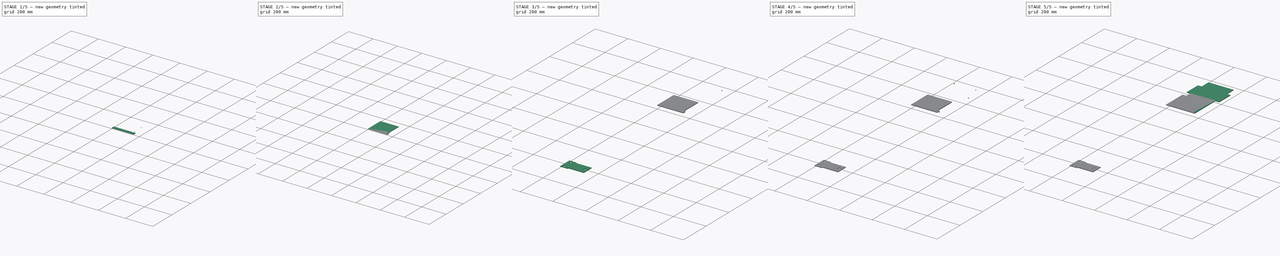
[diagram: build sequence overview — one tinted view per stage of 5, left to right]
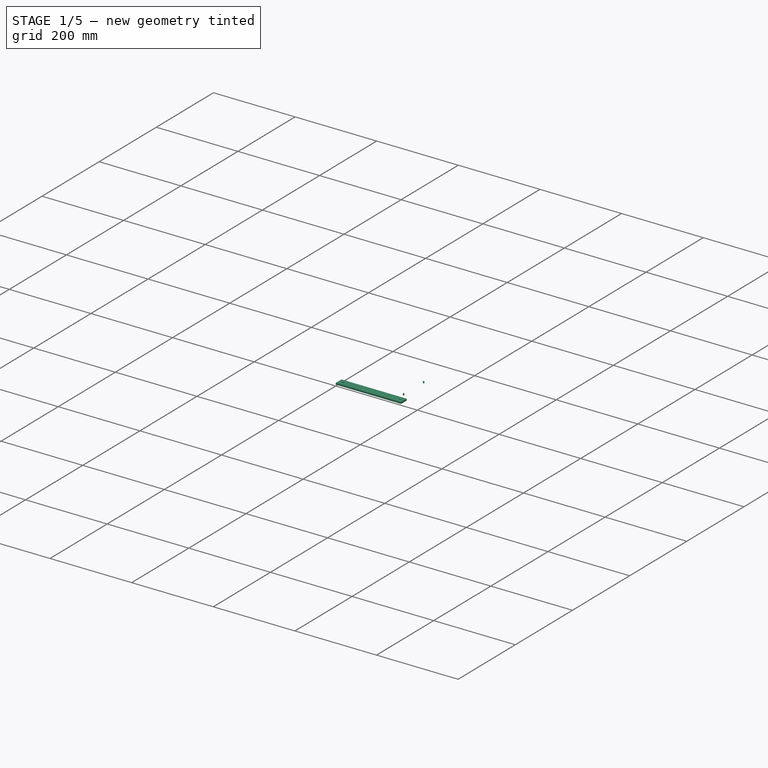
[diagram: stage 1 of 5 — iso view after this stage's code; geometry added in this stage tinted green]
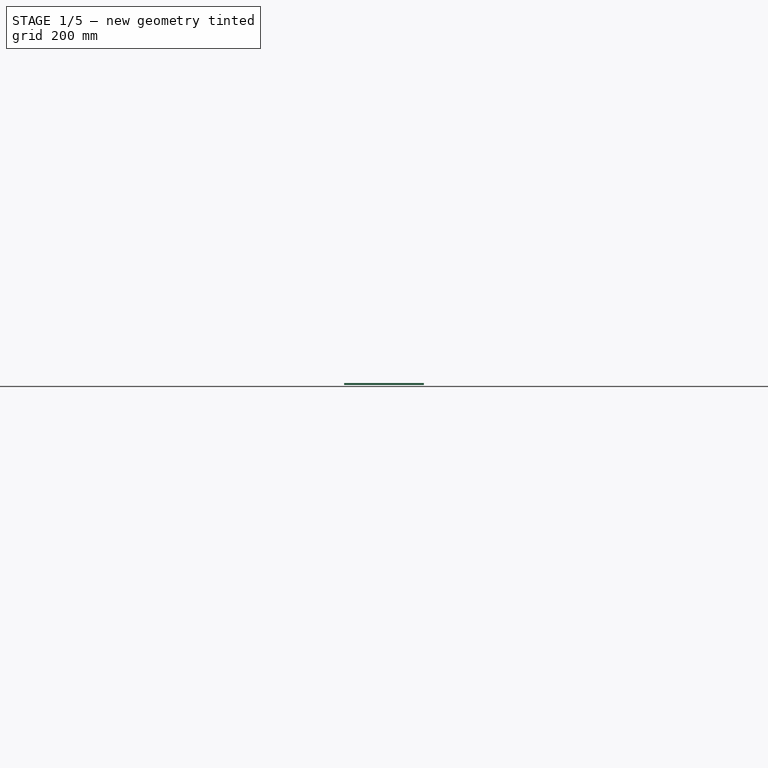
[diagram: stage 1 of 5 — front view after this stage's code; geometry added in this stage tinted green]
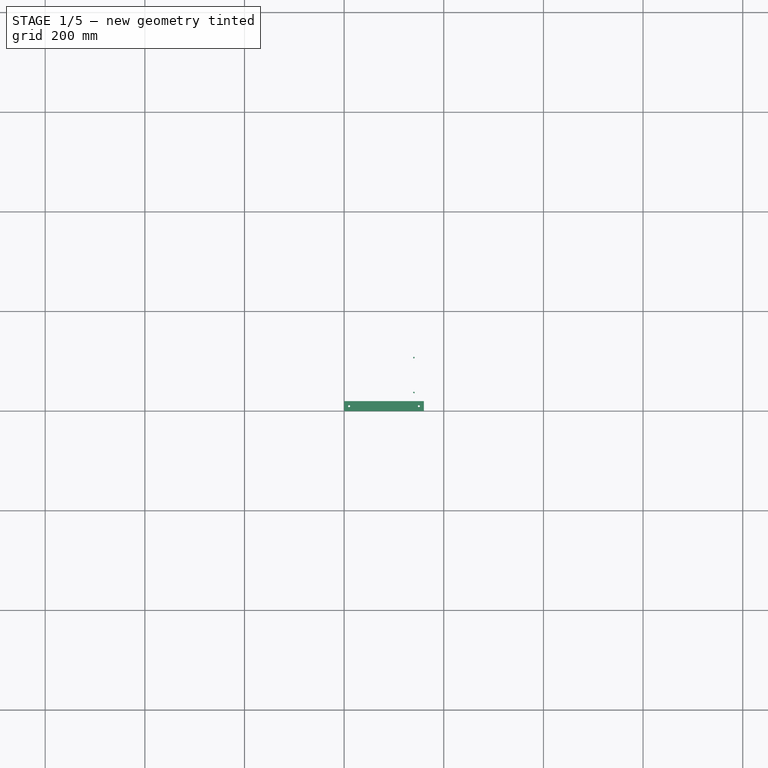
[diagram: stage 1 of 5 — top view after this stage's code; geometry added in this stage tinted green]
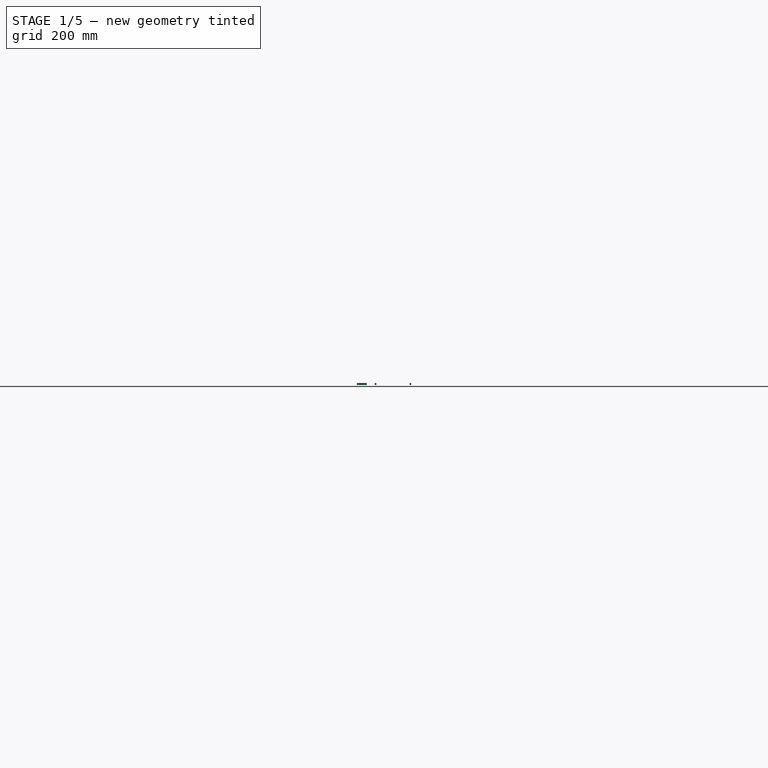
[diagram: stage 1 of 5 — right view after this stage's code; geometry added in this stage tinted green]
FCSTD DOCUMENT  (FreeCAD 0.14R3692 (Git))
Label: lasercuts
License: CC-BY 3.0
LicenseURL: http://creativecommons.org/licenses/by/3.0/
objects: Part::Feature×32, App::DocumentObjectGroup×26, Part::Extrusion×13, Part::Compound×3, Part::Cut×3, Sketcher::SketchObject×2, Part::Chamfer×1, PartDesign::Pad×1, PartDesign::Pocket×1
note: 58 computed .brp shape members not serialized (recipe doc carries the construction recipe); baked Part::Feature solids carry a one-line shape summary decoded from their .brp

FEATURE [Part::Extrusion] Extrude011
  Base = -> Circle007
  Dir = (0,0,4)
  Solid = true
FEATURE [Part::Extrusion] Extrude012
  Base = -> Circle008
  Dir = (0,0,4)
  Solid = true
FEATURE [Part::Feature] Chamfer001  label="bed-plate"
  shape: bbox 150 x 145 x 4 mm, 12 faces (baked)
FEATURE [Sketcher::SketchObject] Sketch  label="reprap-plate-sketch"
  sketch-geometry (4):
    g0: LineSegment StartX=0 StartY=0 StartZ=0 EndX=160 EndY=0 EndZ=0
    g1: LineSegment StartX=160 StartY=0 StartZ=0 EndX=160 EndY=20 EndZ=0
    g2: LineSegment StartX=160 StartY=20 StartZ=0 EndX=0 EndY=20 EndZ=0
    g3: LineSegment StartX=0 StartY=20 StartZ=0 EndX=0 EndY=0 EndZ=0
  constraints (11):
    c: Coincident(g0,g1)
    c: Coincident(g1,g2)
    c: Coincident(g2,g3)
    c: Coincident(g3,g0)
    c: Horizontal(g0)
    c: Horizontal(g2)
    c: Vertical(g1)
    c: Vertical(g3)
    c: Coincident(g0,g-1)
    c: DistanceY(g3) = -20
    c: DistanceX(g0) = 160
FEATURE [PartDesign::Pad] Pad  label="reprap-plate-pad"
  Length = 4
  Length2 = 100
  Sketch = -> Sketch
  Type = 0
FEATURE [Sketcher::SketchObject] Sketch001  label="reprap-plate-holes-sketch"
  Placement = pos=(0,0,4) rot=(0,0,1;0rad)
  Support = -> Pad [Face6]
  sketch-geometry (2):
    g0: Circle CenterX=10 CenterY=10 CenterZ=0 NormalX=0 NormalY=0 NormalZ=1 Radius=2
    g1: Circle CenterX=150 CenterY=10 CenterZ=0 NormalX=0 NormalY=0 NormalZ=1 Radius=2
  constraints (6):
    c: DistanceY(g-1,g0) = 10
    c: DistanceY(g-1,g1) = 10
    c: DistanceX(g-1,g0) = 10
    c: DistanceX(g0,g1) = 140
    c: Equal(g0,g1)
    c: Radius(g0) = 2
FEATURE [PartDesign::Pocket] Pocket  label="reprap-plate-holes-pocket"
  Length = 5
  Sketch = -> Sketch001
  Type = 0
FEATURE [Part::Feature] Pocket001  label="reprap-plate"
  shape: bbox 160 x 20 x 4 mm, 8 faces (baked)
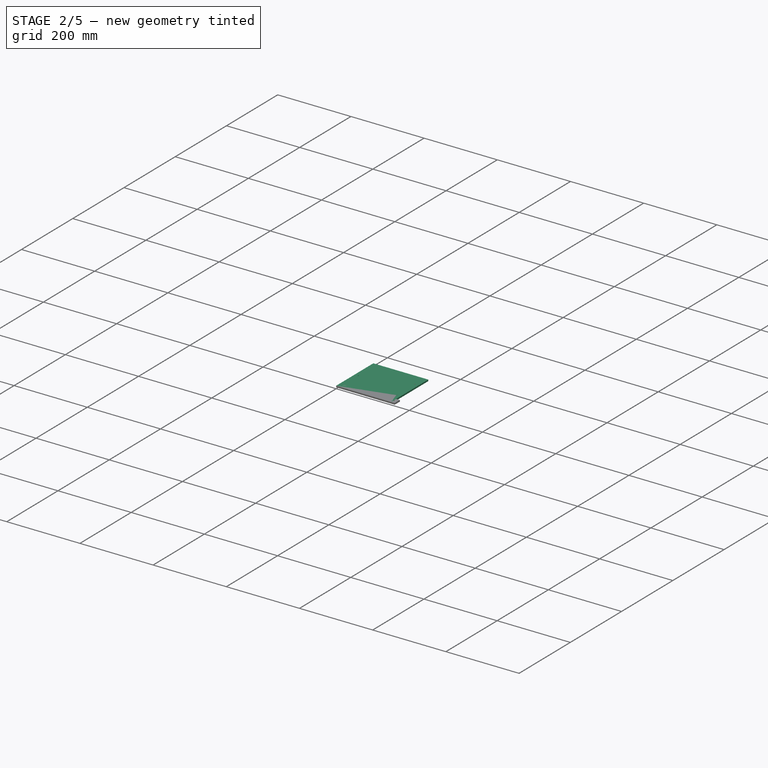
[diagram: stage 2 of 5 — iso view after this stage's code; geometry added in this stage tinted green]
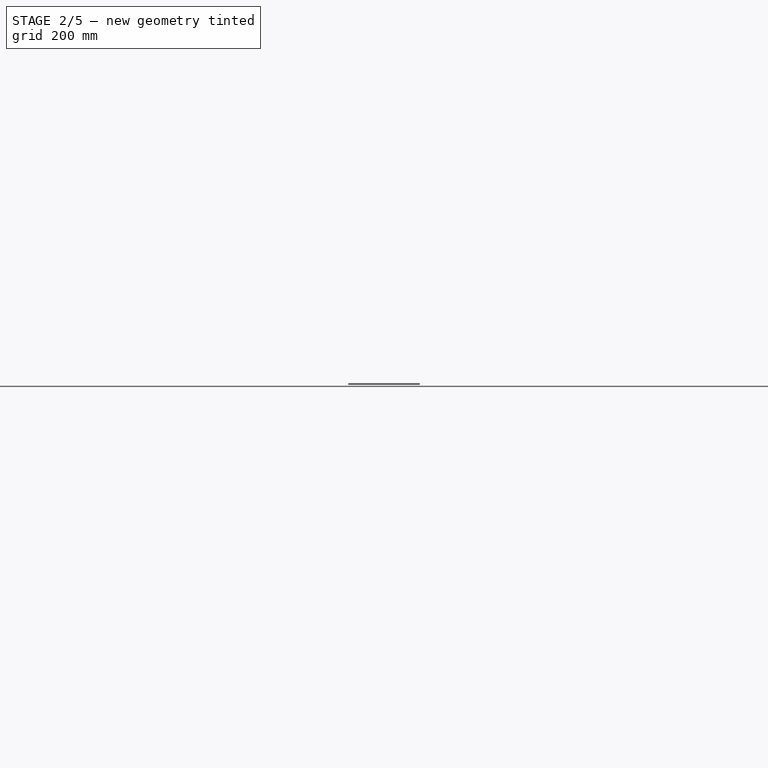
[diagram: stage 2 of 5 — front view after this stage's code; geometry added in this stage tinted green]
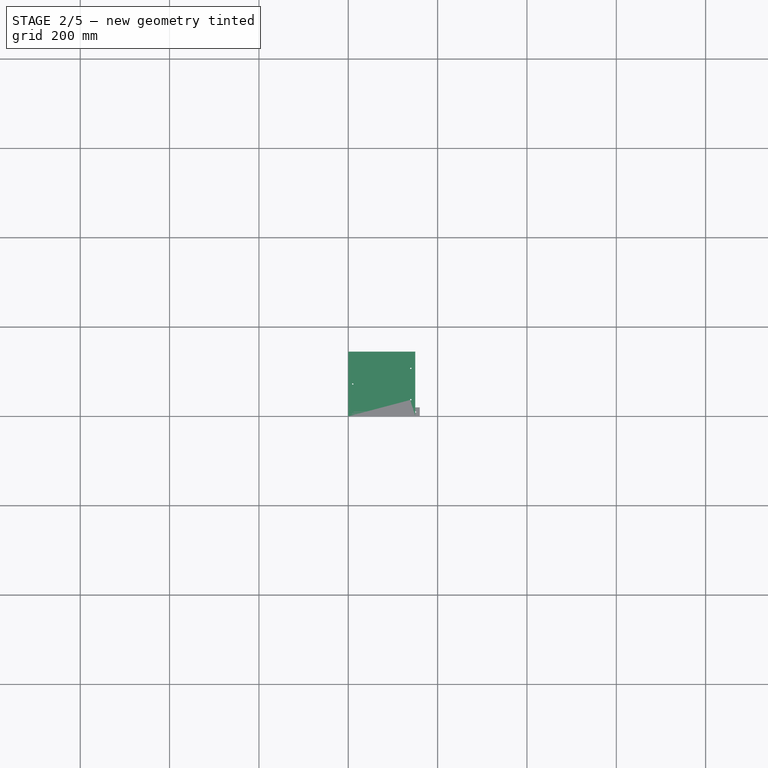
[diagram: stage 2 of 5 — top view after this stage's code; geometry added in this stage tinted green]
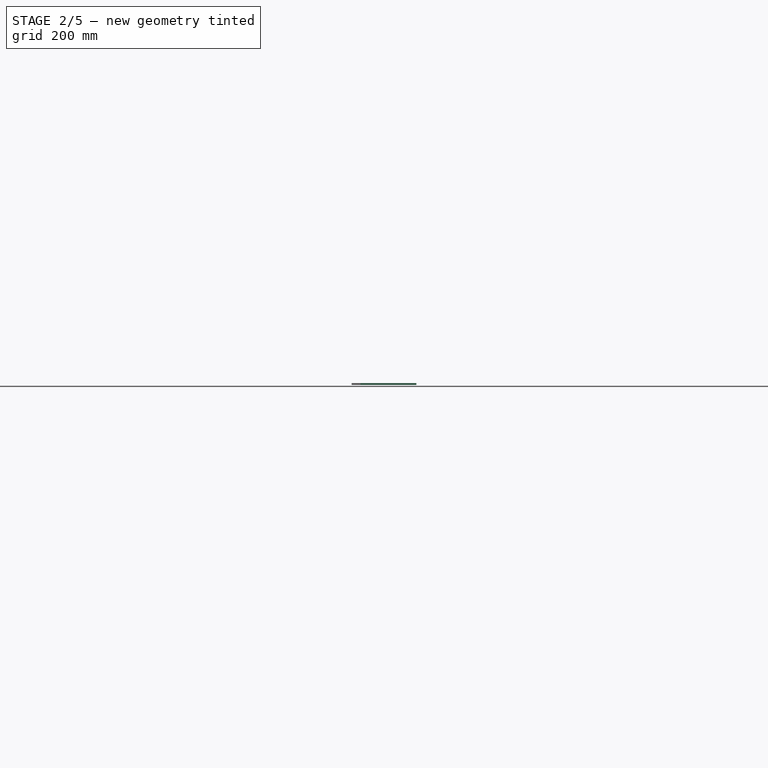
[diagram: stage 2 of 5 — right view after this stage's code; geometry added in this stage tinted green]
FEATURE [Part::Feature] Cut002001  label="y-carriage"
  Placement = pos=(12.698,873,0) rot=(0,0,1;0rad)
  shape: bbox 140 x 80 x 4 mm, 174 faces (baked)
FEATURE [Part::Feature] Polyline018
  shape: bbox 150 x 145 x 2e-07 mm, 1 faces, 0 solids (baked)
FEATURE [App::DocumentObjectGroup] COMPONENT0018  label="COMPONENT019"
  Group = -> [Polyline018]
FEATURE [Part::Feature] Circle006
  shape: bbox 3 x 3 x 2e-07 mm, 0 faces, 0 solids (baked)
FEATURE [App::DocumentObjectGroup] COMPONENT1001  label="COMPONENT020"
  Group = -> [Circle006]
FEATURE [Part::Feature] Circle007
  shape: bbox 3 x 3 x 2e-07 mm, 0 faces, 0 solids (baked)
FEATURE [App::DocumentObjectGroup] COMPONENT1002  label="COMPONENT021"
  Group = -> [Circle007]
FEATURE [Part::Feature] Circle008
  shape: bbox 3 x 3 x 2e-07 mm, 0 faces, 0 solids (baked)
FEATURE [App::DocumentObjectGroup] COMPONENT1003  label="COMPONENT022"
  Group = -> [Circle008]
FEATURE [App::DocumentObjectGroup] bed_plate  label="bed-plate-dxf"
  Group = -> [COMPONENT0018,COMPONENT1001,COMPONENT1002,COMPONENT1003]
FEATURE [Part::Extrusion] Extrude009
  Base = -> Polyline018
  Dir = (0,0,4)
  Solid = true
FEATURE [Part::Extrusion] Extrude010
  Base = -> Circle006
  Dir = (0,0,4)
  Solid = true
FEATURE [Part::Compound] Compound002
  Links = -> [Extrude010,Extrude011,Extrude012]
FEATURE [Part::Cut] Cut002002
  Base = -> Extrude009
  Tool = -> Compound002
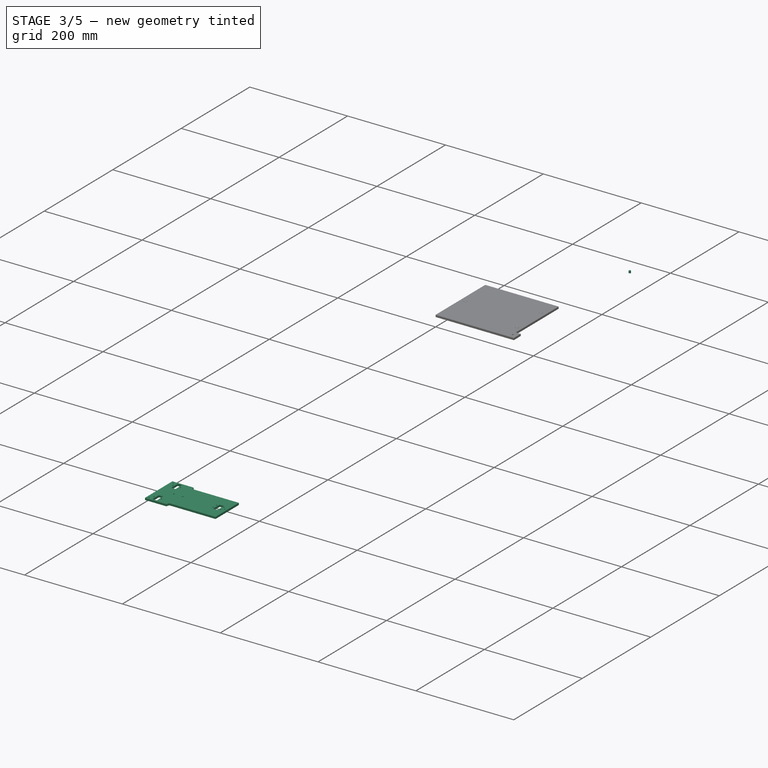
[diagram: stage 3 of 5 — iso view after this stage's code; geometry added in this stage tinted green]
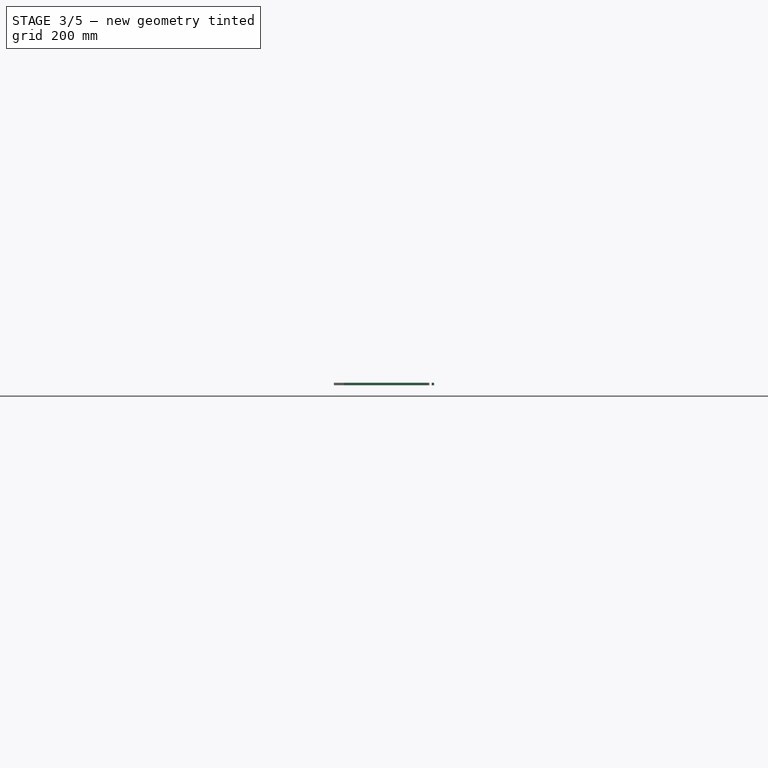
[diagram: stage 3 of 5 — front view after this stage's code; geometry added in this stage tinted green]
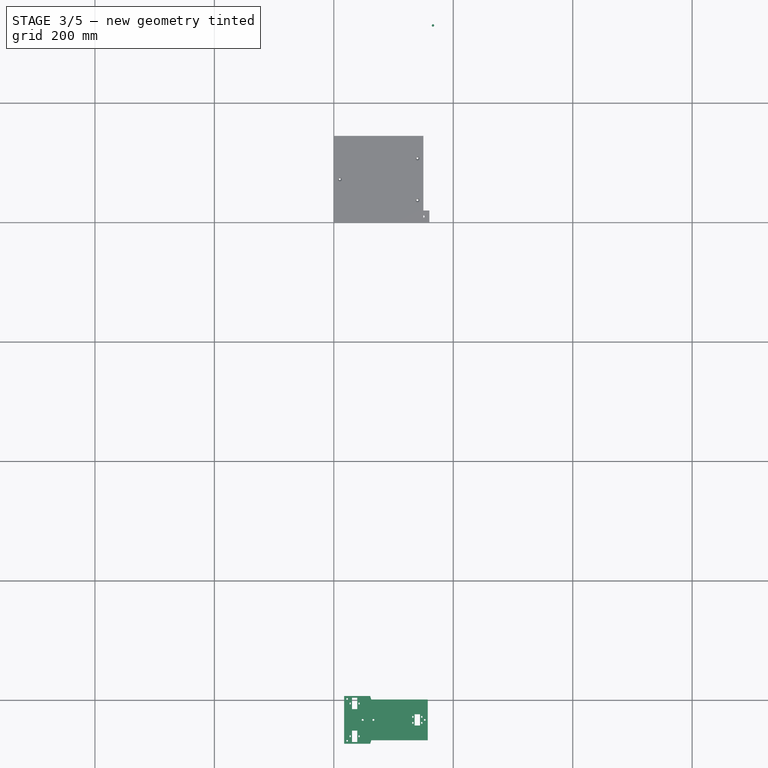
[diagram: stage 3 of 5 — top view after this stage's code; geometry added in this stage tinted green]
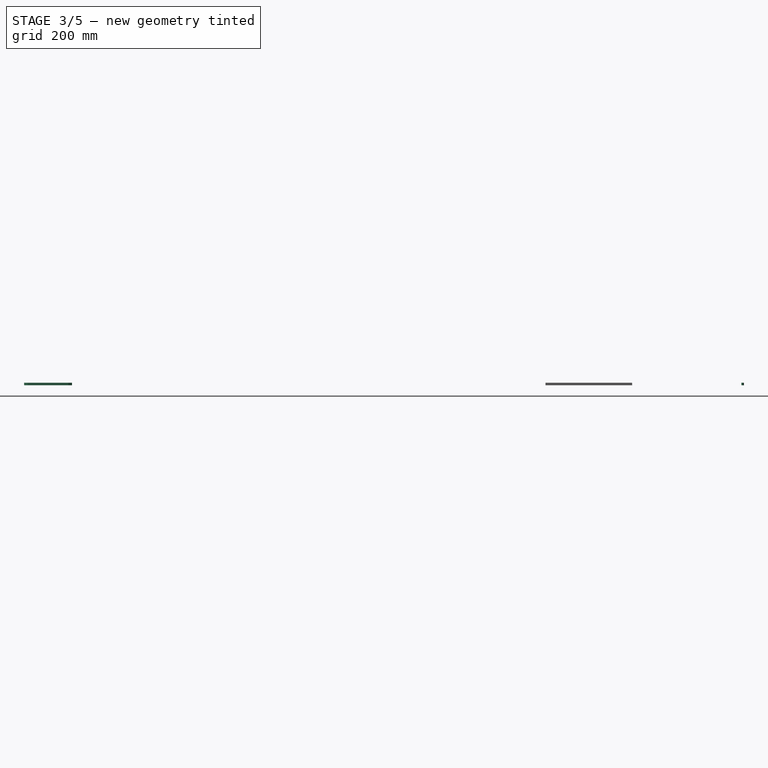
[diagram: stage 3 of 5 — right view after this stage's code; geometry added in this stage tinted green]
FEATURE [Part::Extrusion] Extrude006
  Base = -> Circle005
  Dir = (0,0,4)
  Solid = true
FEATURE [Part::Feature] Cut001  label="under-plate"
  shape: bbox 200 x 340 x 4 mm, 20 faces (baked)
FEATURE [Part::Feature] Polyline001
  shape: bbox 140 x 80 x 2e-07 mm, 0 faces, 0 solids (baked)
FEATURE [App::DocumentObjectGroup] COMPONENT0001  label="COMPONENT002"
  Group = -> [Polyline001]
FEATURE [Part::Feature] Polyline002
  shape: bbox 2 x 3 x 2e-07 mm, 0 faces, 0 solids (baked)
FEATURE [App::DocumentObjectGroup] COMPONENT0002  label="COMPONENT003"
  Group = -> [Polyline002]
FEATURE [Part::Feature] Polyline003
  shape: bbox 2 x 3 x 2e-07 mm, 0 faces, 0 solids (baked)
FEATURE [App::DocumentObjectGroup] COMPONENT0003  label="COMPONENT004"
  Group = -> [Polyline003]
FEATURE [Part::Feature] Polyline004
  shape: bbox 2 x 3 x 2e-07 mm, 0 faces, 0 solids (baked)
FEATURE [App::DocumentObjectGroup] COMPONENT0004  label="COMPONENT005"
  Group = -> [Polyline004]
FEATURE [Part::Feature] Polyline005
  shape: bbox 2 x 3 x 2e-07 mm, 0 faces, 0 solids (baked)
FEATURE [App::DocumentObjectGroup] COMPONENT0005  label="COMPONENT006"
  Group = -> [Polyline005]
FEATURE [Part::Feature] Polyline006
  shape: bbox 8.858 x 19 x 2e-07 mm, 0 faces, 0 solids (baked)
FEATURE [App::DocumentObjectGroup] COMPONENT0006  label="COMPONENT007"
  Group = -> [Polyline006]
FEATURE [Part::Feature] Polyline007
  shape: bbox 8.858 x 19 x 2e-07 mm, 0 faces, 0 solids (baked)
FEATURE [App::DocumentObjectGroup] COMPONENT0007  label="COMPONENT008"
  Group = -> [Polyline007]
FEATURE [Part::Feature] Polyline008
  shape: bbox 3.2 x 3.2 x 2e-07 mm, 0 faces, 0 solids (baked)
FEATURE [App::DocumentObjectGroup] COMPONENT0008  label="COMPONENT009"
  Group = -> [Polyline008]
FEATURE [Part::Feature] Polyline009
  shape: bbox 3.2 x 3.2 x 2e-07 mm, 0 faces, 0 solids (baked)
FEATURE [App::DocumentObjectGroup] COMPONENT0009  label="COMPONENT010"
  Group = -> [Polyline009]
FEATURE [Part::Feature] Polyline010
  shape: bbox 8.858 x 19 x 2e-07 mm, 0 faces, 0 solids (baked)
FEATURE [App::DocumentObjectGroup] COMPONENT0010  label="COMPONENT011"
  Group = -> [Polyline010]
FEATURE [Part::Feature] Polyline011
  shape: bbox 2 x 3 x 2e-07 mm, 0 faces, 0 solids (baked)
FEATURE [App::DocumentObjectGroup] COMPONENT0011  label="COMPONENT012"
  Group = -> [Polyline011]
FEATURE [Part::Feature] Polyline012
  shape: bbox 2 x 3 x 2e-07 mm, 0 faces, 0 solids (baked)
FEATURE [App::DocumentObjectGroup] COMPONENT0012  label="COMPONENT013"
  Group = -> [Polyline012]
FEATURE [Part::Feature] Polyline013
  shape: bbox 2 x 3 x 2e-07 mm, 0 faces, 0 solids (baked)
FEATURE [App::DocumentObjectGroup] COMPONENT0013  label="COMPONENT014"
  Group = -> [Polyline013]
FEATURE [Part::Feature] Polyline014
  shape: bbox 2 x 3 x 2e-07 mm, 0 faces, 0 solids (baked)
FEATURE [App::DocumentObjectGroup] COMPONENT0014  label="COMPONENT015"
  Group = -> [Polyline014]
FEATURE [Part::Feature] Polyline015
  shape: bbox 2.9 x 2.9 x 2e-07 mm, 0 faces, 0 solids (baked)
FEATURE [App::DocumentObjectGroup] COMPONENT0015  label="COMPONENT016"
  Group = -> [Polyline015]
FEATURE [Part::Feature] Polyline016
  shape: bbox 2.9 x 2.9 x 2e-07 mm, 0 faces, 0 solids (baked)
FEATURE [App::DocumentObjectGroup] COMPONENT0016  label="COMPONENT017"
  Group = -> [Polyline016]
FEATURE [Part::Feature] Polyline017
  shape: bbox 2.9 x 2.9 x 2e-07 mm, 0 faces, 0 solids (baked)
FEATURE [App::DocumentObjectGroup] COMPONENT0017  label="COMPONENT018"
  Group = -> [Polyline017]
FEATURE [App::DocumentObjectGroup] y_carriage  label="y-carriage-dxf"
  Group = -> [COMPONENT0001,COMPONENT0002,COMPONENT0003,COMPONENT0004,COMPONENT0005,COMPONENT0006,COMPONENT0007,COMPONENT0008,COMPONENT0009,COMPONENT0010,COMPONENT0011,COMPONENT0012,COMPONENT0013,COMPONENT0014,COMPONENT0015,COMPONENT0016,COMPONENT0017]
FEATURE [Part::Extrusion] Extrude007
  Base = -> Polyline001
  Dir = (0,0,4)
  Solid = true
FEATURE [Part::Compound] Compound001
  Links = -> [Polyline017,Polyline016,Polyline015,Polyline014,Polyline013,Polyline012,Polyline011,Polyline010,Polyline009,Polyline008,Polyline007,Polyline006,Polyline005,Polyline004,Polyline003,Polyline002]
FEATURE [Part::Extrusion] Extrude008
  Base = -> Compound001
  Dir = (0,0,4)
  Solid = true
FEATURE [Part::Cut] Cut002
  Base = -> Extrude007
  Tool = -> Extrude008
FEATURE [Part::Chamfer] Chamfer
  Base = -> Cut002002
  Edges = 3 edges r=2: [Edge16,Edge17,Edge18]
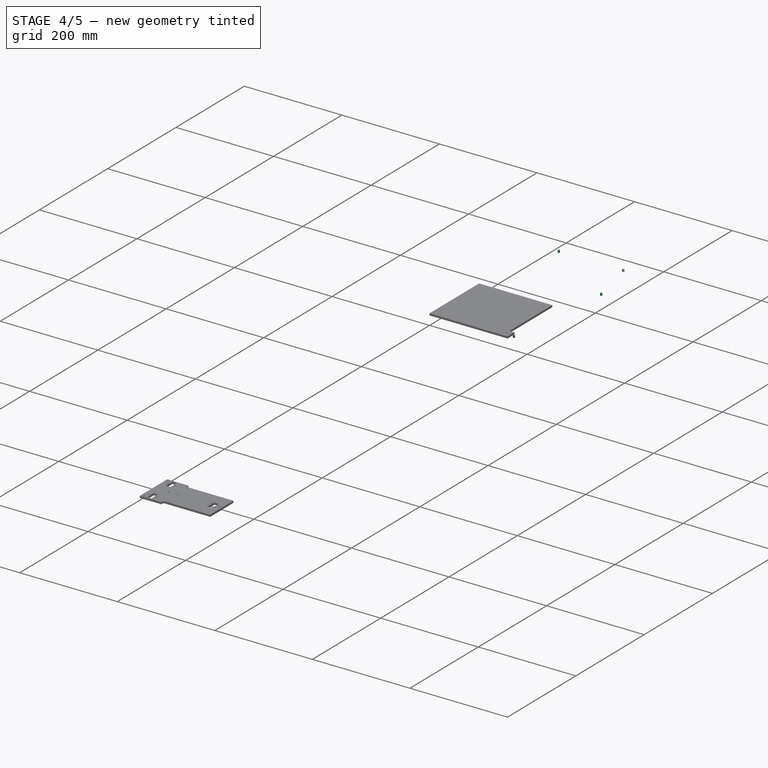
[diagram: stage 4 of 5 — iso view after this stage's code; geometry added in this stage tinted green]
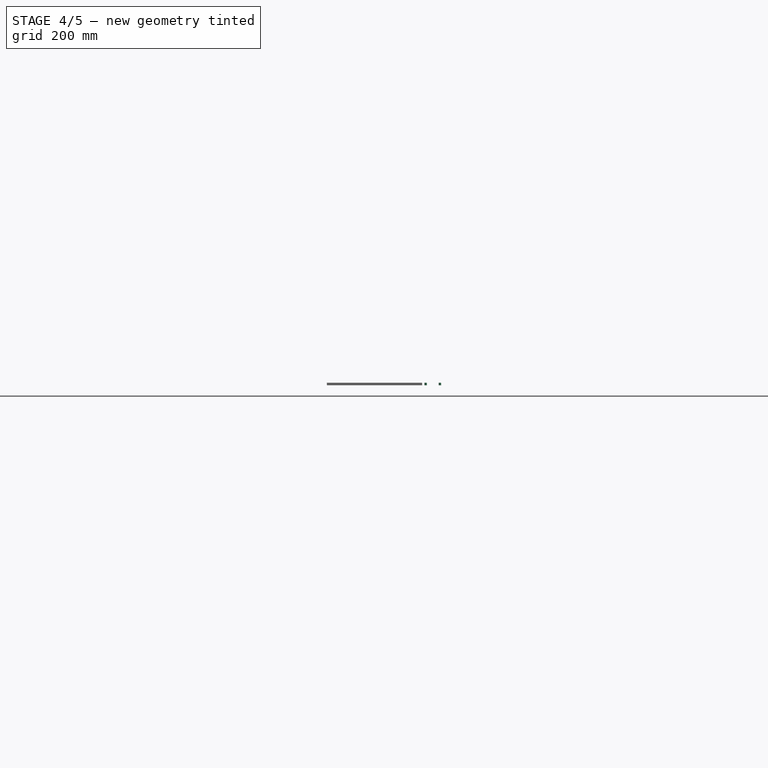
[diagram: stage 4 of 5 — front view after this stage's code; geometry added in this stage tinted green]
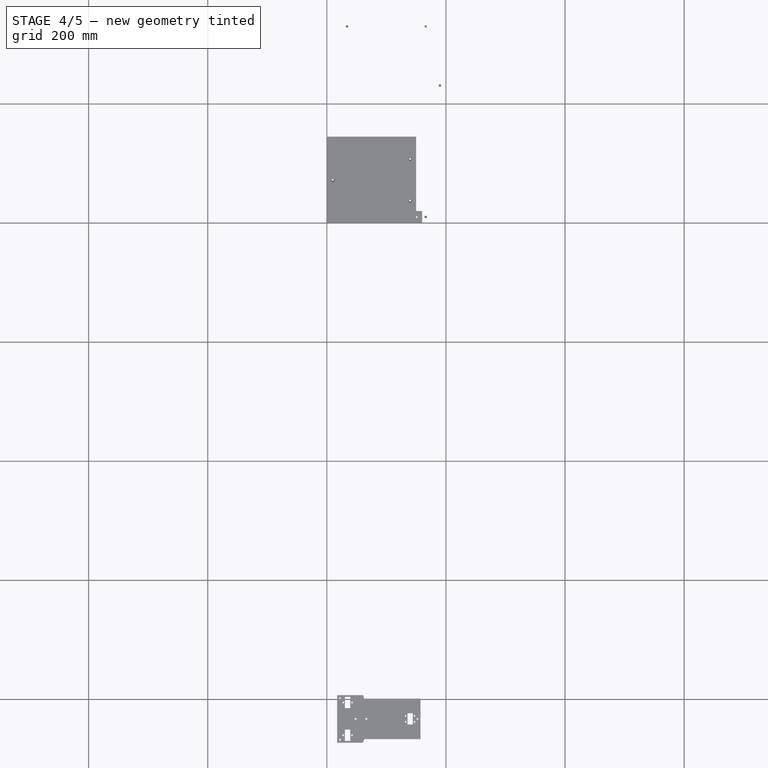
[diagram: stage 4 of 5 — top view after this stage's code; geometry added in this stage tinted green]
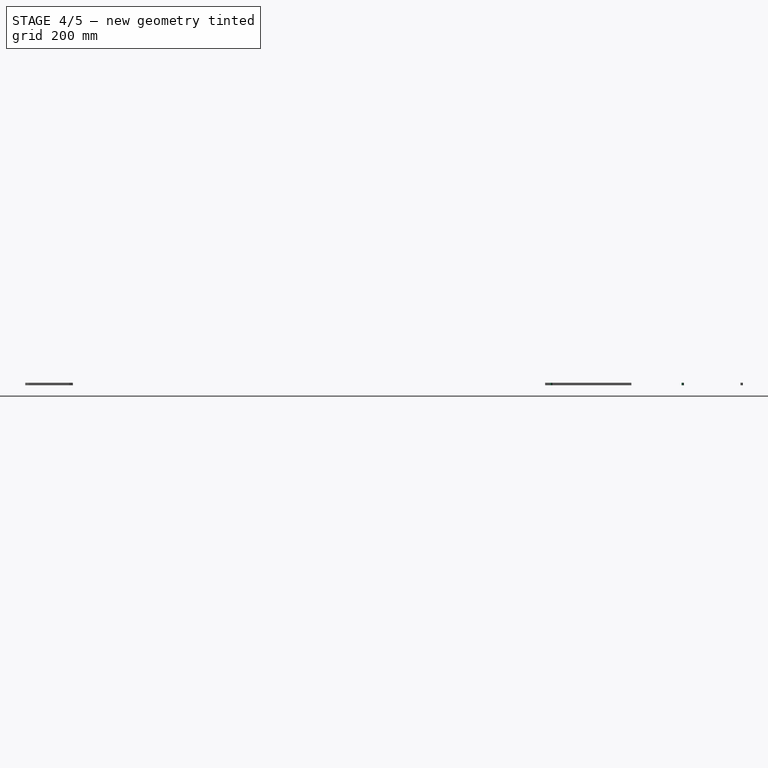
[diagram: stage 4 of 5 — right view after this stage's code; geometry added in this stage tinted green]
FEATURE [Part::Extrusion] Extrude002
  Base = -> Circle001
  Dir = (0,0,4)
  Solid = true
FEATURE [Part::Extrusion] Extrude003
  Base = -> Circle002
  Dir = (0,0,4)
  Solid = true
FEATURE [Part::Extrusion] Extrude004
  Base = -> Circle003
  Dir = (0,0,4)
  Solid = true
FEATURE [Part::Extrusion] Extrude005
  Base = -> Circle004
  Dir = (0,0,4)
  Solid = true
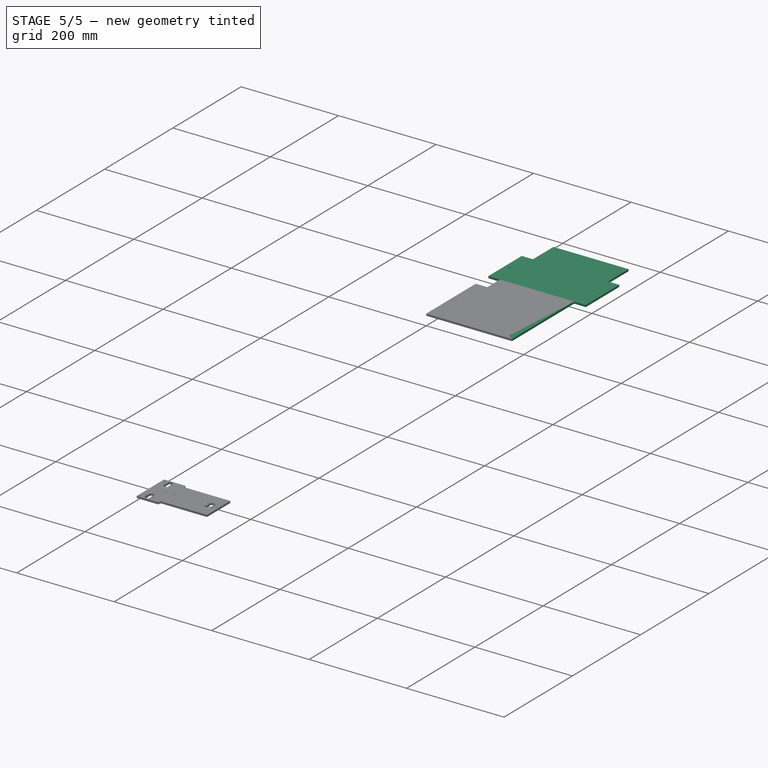
[diagram: stage 5 of 5 — iso view after this stage's code; geometry added in this stage tinted green]
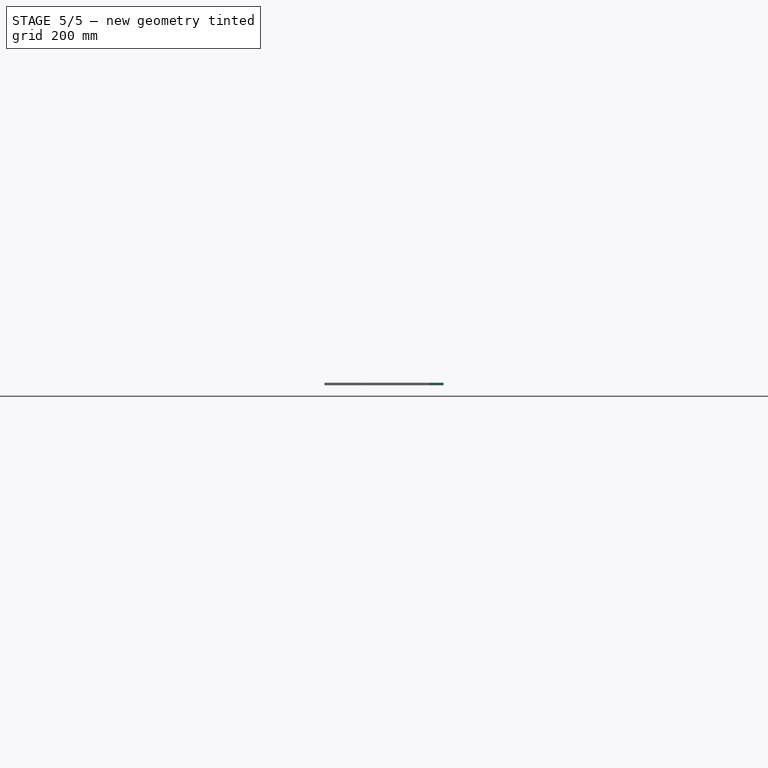
[diagram: stage 5 of 5 — front view after this stage's code; geometry added in this stage tinted green]
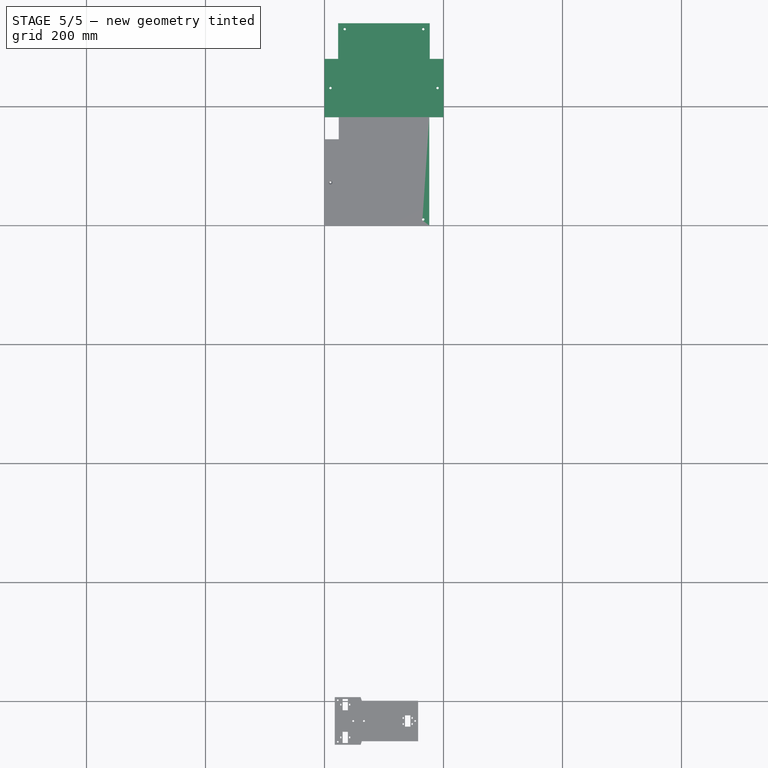
[diagram: stage 5 of 5 — top view after this stage's code; geometry added in this stage tinted green]
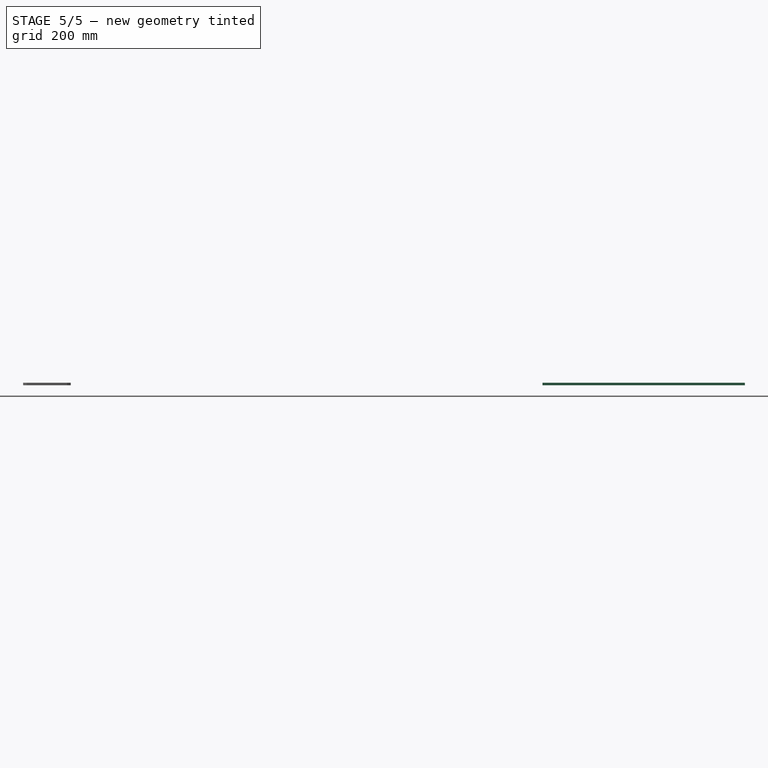
[diagram: stage 5 of 5 — right view after this stage's code; geometry added in this stage tinted green]
FEATURE [Part::Feature] Polyline
  shape: bbox 200 x 340 x 2e-07 mm, 1 faces, 0 solids (baked)
FEATURE [App::DocumentObjectGroup] COMPONENT0
  Group = -> [Polyline]
FEATURE [Part::Feature] Circle
  shape: bbox 4 x 4 x 2e-07 mm, 0 faces, 0 solids (baked)
FEATURE [Part::Feature] Circle001 .. Circle005  x5 (patterned run collapsed; names and placements below)
  shape: bbox 4 x 4 x 2e-07 mm, 0 faces, 0 solids (baked)
FEATURE [App::DocumentObjectGroup] COMPONENT1
  Group = -> [Circle,Circle001,Circle002,Circle003,Circle004,Circle005,COMPONENT0]
FEATURE [App::DocumentObjectGroup] underplate  label="under-plate-dxf"
  Group = -> [COMPONENT1]
FEATURE [Part::Extrusion] Extrude
  Base = -> Polyline
  Dir = (0,0,4)
  Solid = true
FEATURE [Part::Extrusion] Extrude001
  Base = -> Circle
  Dir = (0,0,4)
  Solid = true
FEATURE [Part::Compound] Compound
  Links = -> [Extrude001,Extrude005,Extrude003,Extrude006,Extrude002,Extrude004]
FEATURE [Part::Cut] Cut
  Base = -> Extrude
  Tool = -> Compound
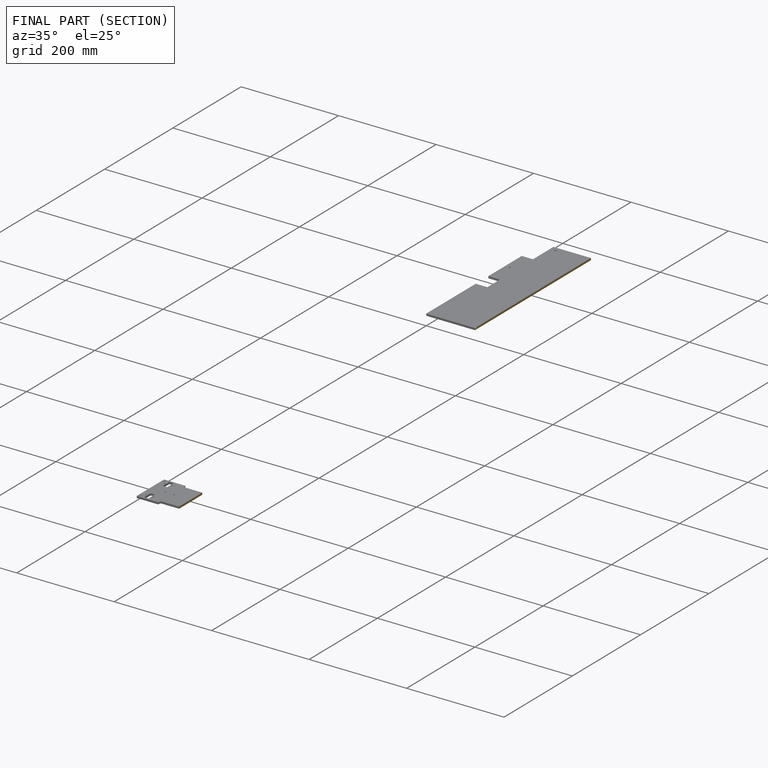
[diagram: finished part — half-section view (interior)]
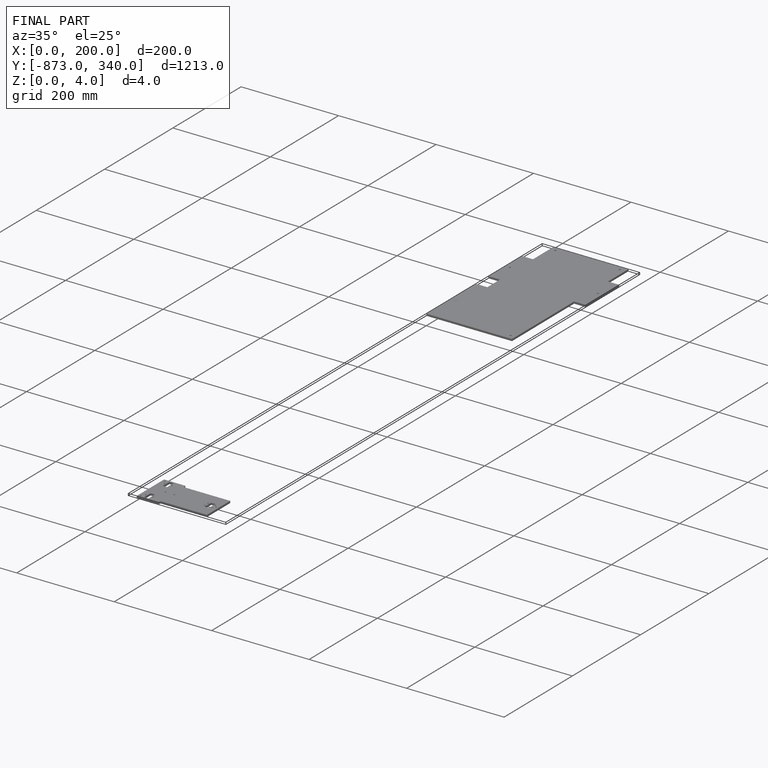
[diagram: finished part — iso view with bounding-box wireframe]
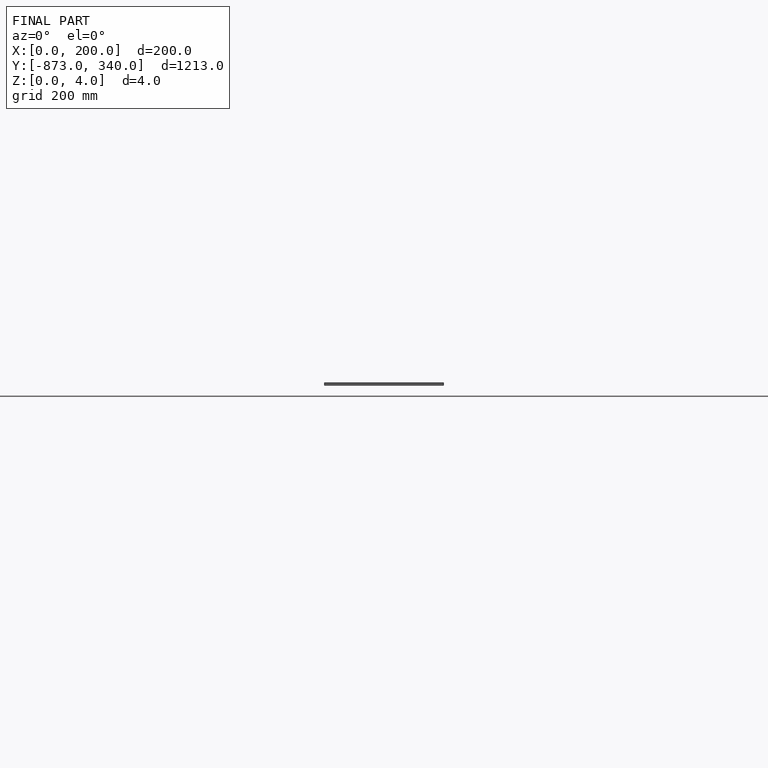
[diagram: finished part — front view with bounding-box wireframe]
